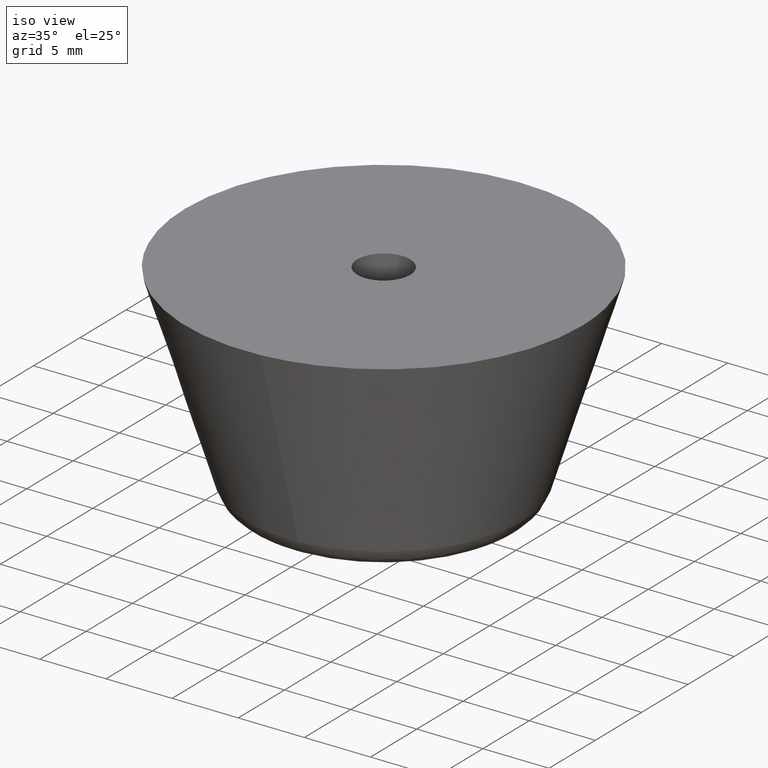
[diagram: clean part render]
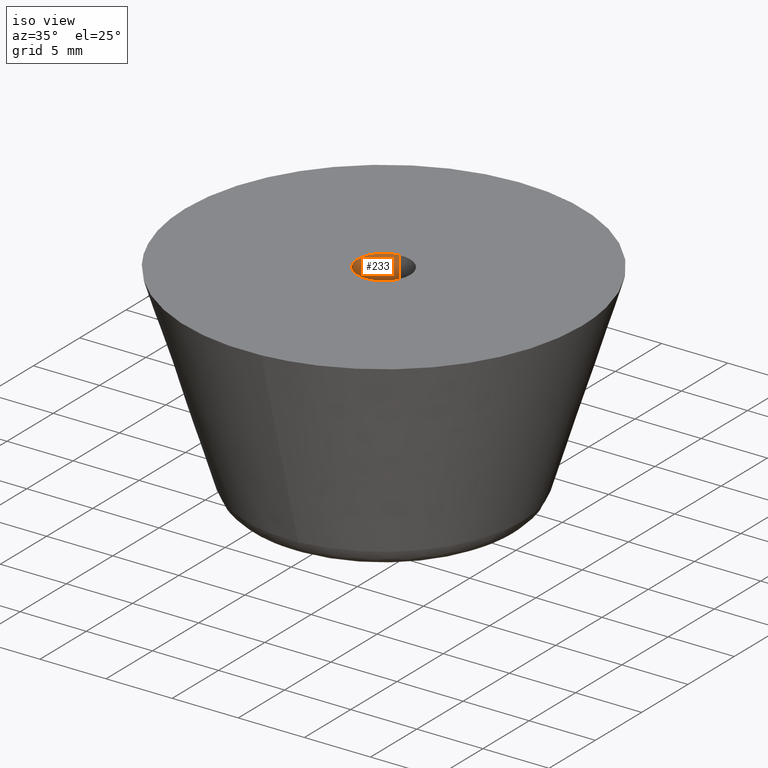
[diagram: same view with one face highlighted and labeled with its STEP entity id]
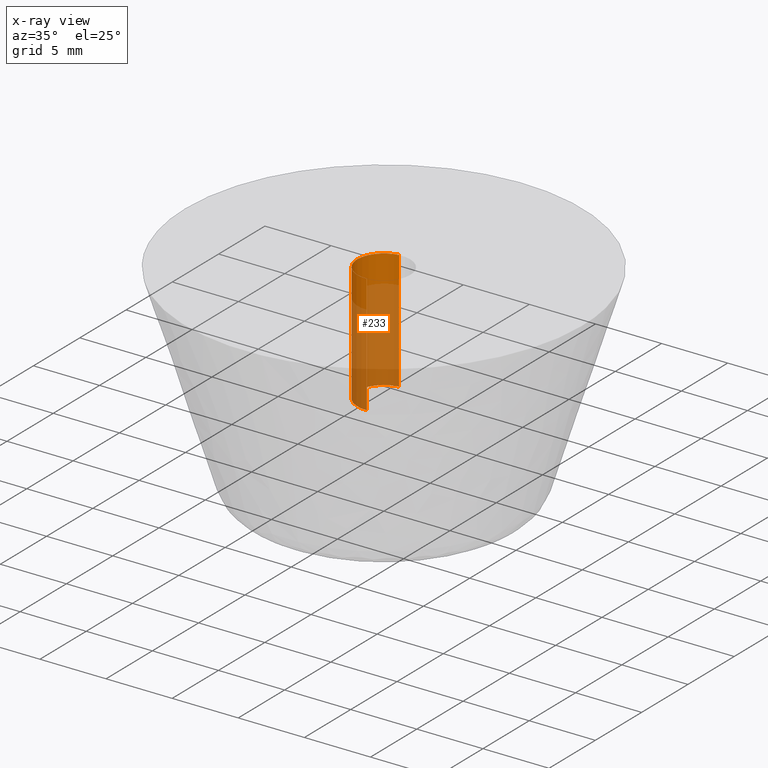
[diagram: x-ray of the same camera — body ghosted, the highlighted face saturated]
A machine part, iso view. The second image highlights one B-rep face of the part: STEP entity #233.
The next image is the same camera in x-ray: the body ghosted, the highlighted face saturated — about 74% of this face is hidden behind the body in this view.
In plain terms, the highlighted face is a freeform B-spline surface patch.
Its self-contained STEP definition (entity closure, byte-faithful):
#70=CARTESIAN_POINT('',(-0.236068469328979,1.986019052725495,7.0));
#71=VERTEX_POINT('',#70);
#89=CARTESIAN_POINT('',(0.122093390652916,-1.996269822430129,7.000000000000023));
#90=VERTEX_POINT('',#89);
#104=CARTESIAN_POINT('',(0.122093436056999,-1.996269819653264,16.0));
#105=VERTEX_POINT('',#104);
#106=CARTESIAN_POINT('',(0.122093436056999,-1.996269819653264,16.0));
#107=CARTESIAN_POINT('',(0.122093390652916,-1.996269822430129,7.000000000000023));
#108=QUASI_UNIFORM_CURVE('',1,(#106,#107),.UNSPECIFIED.,.F.,.U.);
#109=EDGE_CURVE('',#105,#90,#108,.T.);
#126=CARTESIAN_POINT('',(-0.236068469328979,1.986019052725495,16.0));
#127=VERTEX_POINT('',#126);
#143=CARTESIAN_POINT('',(-0.236068469328979,1.986019052725495,16.0));
#144=CARTESIAN_POINT('',(-0.236068469328979,1.986019052725495,7.0));
#145=QUASI_UNIFORM_CURVE('',1,(#143,#144),.UNSPECIFIED.,.F.,.U.);
#146=EDGE_CURVE('',#127,#71,#145,.T.);
#151=CARTESIAN_POINT('',(0.122097079069714,-1.996269596843733,16.225000000000001));
#152=CARTESIAN_POINT('',(-1.874172517774020,-2.118366675913447,16.225000000000009));
#153=CARTESIAN_POINT('',(-1.996269596843733,-0.122097079069714,16.225000000000001));
#154=CARTESIAN_POINT('',(-2.111572393465055,1.763086981679002,16.225000000000005));
#155=CARTESIAN_POINT('',(-0.236068469313517,1.986019052727332,16.224999999999998));
#156=CARTESIAN_POINT('',(0.122097079069714,-1.996269596843733,6.769374999999998));
#157=CARTESIAN_POINT('',(-1.874172517774020,-2.118366675913447,6.769374999999998));
#158=CARTESIAN_POINT('',(-1.996269596843733,-0.122097079069714,6.769374999999998));
#159=CARTESIAN_POINT('',(-2.111572393465055,1.763086981679002,6.769374999999998));
#160=CARTESIAN_POINT('',(-0.236068469313517,1.986019052727332,6.769374999999999));
#168=(BOUNDED_SURFACE()B_SPLINE_SURFACE(2,1,((#151,#156),(#152,#157),(#153,#158),(#154,#159),(#155,#160)),.UNSPECIFIED.,.F.,.F.,.U.)B_SPLINE_SURFACE_WITH_KNOTS((3,2,3),(2,2),(0.0,3.313708498984759,6.494868658010128),(0.0,9.455625000000005),.UNSPECIFIED.)GEOMETRIC_REPRESENTATION_ITEM()RATIONAL_B_SPLINE_SURFACE(((1.0,1.0),(0.707106781186548,0.707106781186548),(1.0,1.0),(0.718822509939086,0.718822509939086),(0.977505800795127,0.977505800795127)))REPRESENTATION_ITEM('')SURFACE());
#169=CARTESIAN_POINT('',(-2.0,0.0,7.0));
#170=VERTEX_POINT('',#169);
#171=CARTESIAN_POINT('',(-2.0,0.0,7.0));
#172=CARTESIAN_POINT('',(-2.000000000000000,1.776349051874881,6.999999999999999));
#173=CARTESIAN_POINT('',(-0.236068469328979,1.986019052725495,7.0));
#181=(BOUNDED_CURVE()B_SPLINE_CURVE(2,(#171,#172,#173),.UNSPECIFIED.,.F.,.U.)B_SPLINE_CURVE_WITH_KNOTS((3,3),(0.0,0.229562473513013),.UNSPECIFIED.)CURVE()GEOMETRIC_REPRESENTATION_ITEM()RATIONAL_B_SPLINE_CURVE((1.0,0.731050832855983,0.956026754182728))REPRESENTATION_ITEM(''));
#182=EDGE_CURVE('',#170,#71,#181,.T.);
#183=ORIENTED_EDGE('',*,*,#182,.T.);
#184=ORIENTED_EDGE('',*,*,#146,.F.);
#185=CARTESIAN_POINT('',(-2.0,0.0,16.0));
#186=VERTEX_POINT('',#185);
#187=CARTESIAN_POINT('',(-2.0,0.0,16.0));
#188=CARTESIAN_POINT('',(-2.000000000000000,1.776349051874881,15.999999999999998));
#189=CARTESIAN_POINT('',(-0.236068469328979,1.986019052725495,15.999999999999998));
#197=(BOUNDED_CURVE()B_SPLINE_CURVE(2,(#187,#188,#189),.UNSPECIFIED.,.F.,.U.)B_SPLINE_CURVE_WITH_KNOTS((3,3),(0.0,0.229562473513013),.UNSPECIFIED.)CURVE()GEOMETRIC_REPRESENTATION_ITEM()RATIONAL_B_SPLINE_CURVE((1.0,0.731050832855983,0.956026754182728))REPRESENTATION_ITEM(''));
#198=EDGE_CURVE('',#186,#127,#197,.T.);
#199=ORIENTED_EDGE('',*,*,#198,.F.);
#200=CARTESIAN_POINT('',(0.122093436056999,-1.996269819653264,16.0));
#201=CARTESIAN_POINT('',(0.061103699983748,-2.000000000000000,16.000000000000004));
#202=CARTESIAN_POINT('',(0.0,-2.0,16.0));
#203=CARTESIAN_POINT('',(-2.000000000000000,-2.000000000000000,15.999999999999998));
#204=CARTESIAN_POINT('',(-2.0,0.0,16.0));
#212=(BOUNDED_CURVE()B_SPLINE_CURVE(2,(#200,#201,#202,#203,#204),.UNSPECIFIED.,.F.,.U.)B_SPLINE_CURVE_WITH_KNOTS((3,2,3),(0.739333277124436,0.750000000000000,1.0),.UNSPECIFIED.)CURVE()GEOMETRIC_REPRESENTATION_ITEM()RATIONAL_B_SPLINE_CURVE((0.976072716527199,0.987503156811140,1.0,0.707106781186548,1.0))REPRESENTATION_ITEM(''));
#213=EDGE_CURVE('',#105,#186,#212,.T.);
#214=ORIENTED_EDGE('',*,*,#213,.F.);
#215=ORIENTED_EDGE('',*,*,#109,.T.);
#216=CARTESIAN_POINT('',(0.122093390652916,-1.996269822430129,7.000000000000023));
#217=CARTESIAN_POINT('',(0.061103677218059,-2.000000000000000,6.999999999999999));
#218=CARTESIAN_POINT('',(0.0,-2.0,7.0));
#219=CARTESIAN_POINT('',(-2.000000000000000,-2.000000000000000,6.999999999999999));
#220=CARTESIAN_POINT('',(-2.0,0.0,7.0));
#228=(BOUNDED_CURVE()B_SPLINE_CURVE(2,(#216,#217,#218,#219,#220),.UNSPECIFIED.,.F.,.U.)B_SPLINE_CURVE_WITH_KNOTS((3,2,3),(0.739333281048922,0.750000000000000,1.0),.UNSPECIFIED.)CURVE()GEOMETRIC_REPRESENTATION_ITEM()RATIONAL_B_SPLINE_CURVE((0.976072724938143,0.987503161408961,1.0,0.707106781186548,1.0))REPRESENTATION_ITEM(''));
#229=EDGE_CURVE('',#90,#170,#228,.T.);
#230=ORIENTED_EDGE('',*,*,#229,.T.);
#231=EDGE_LOOP('',(#183,#184,#199,#214,#215,#230));
#232=FACE_OUTER_BOUND('',#231,.T.);
#233=ADVANCED_FACE('',(#232),#168,.F.);